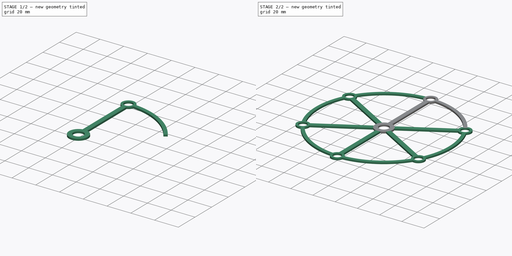
[diagram: build sequence overview — one tinted view per stage of 2, left to right]
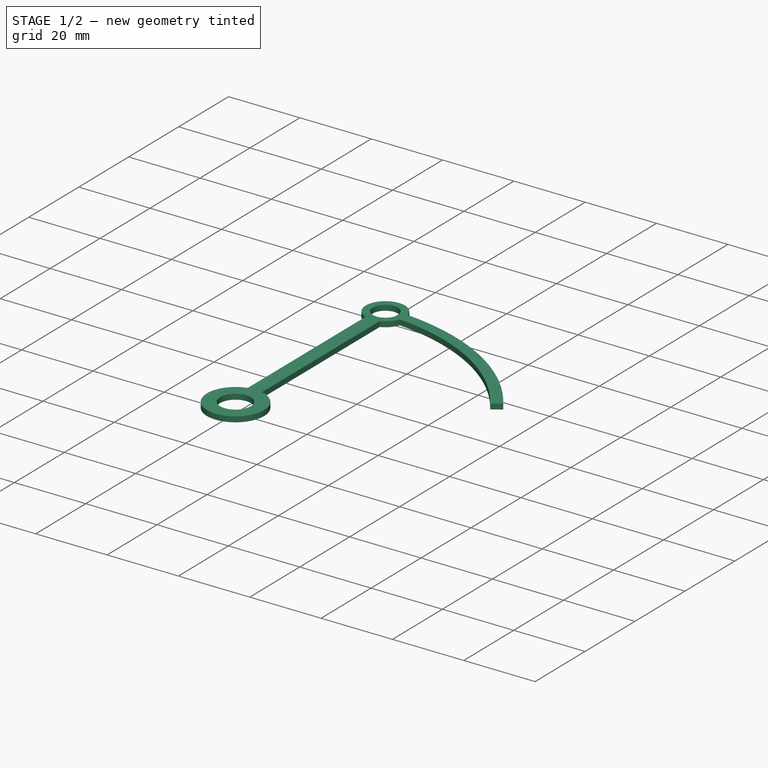
[diagram: stage 1 of 2 — iso view after this stage's code; geometry added in this stage tinted green]
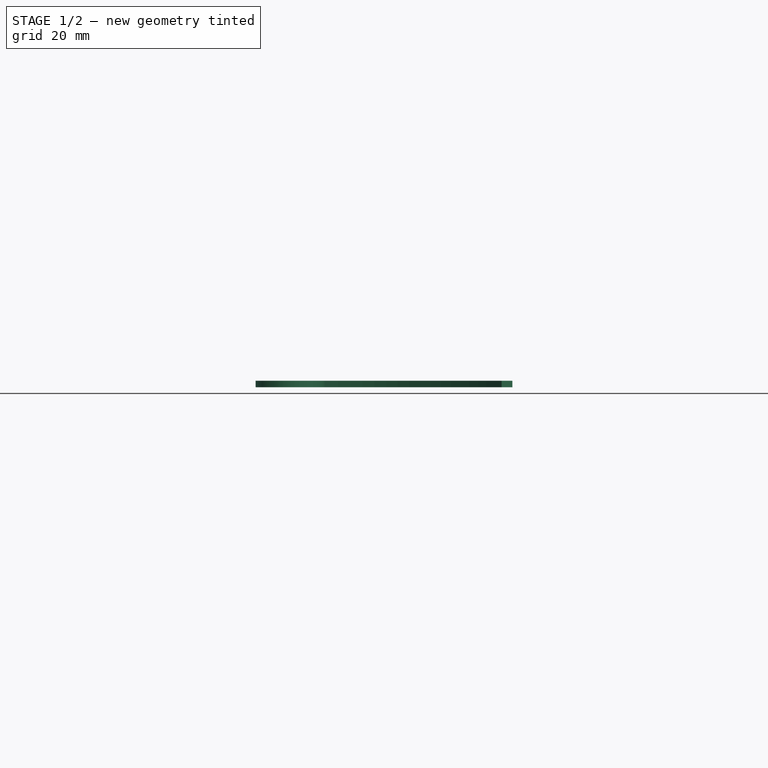
[diagram: stage 1 of 2 — front view after this stage's code; geometry added in this stage tinted green]
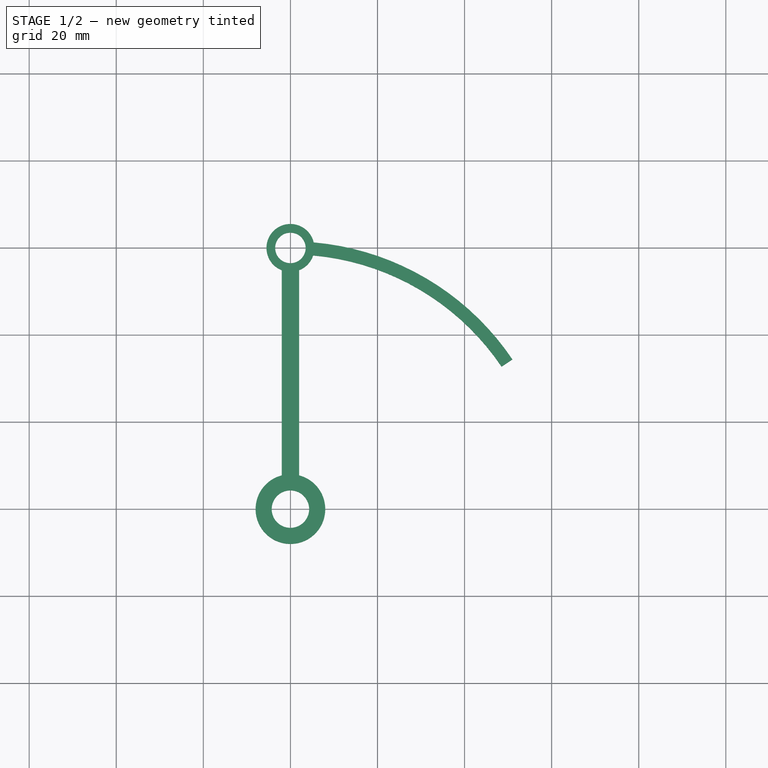
[diagram: stage 1 of 2 — top view after this stage's code; geometry added in this stage tinted green]
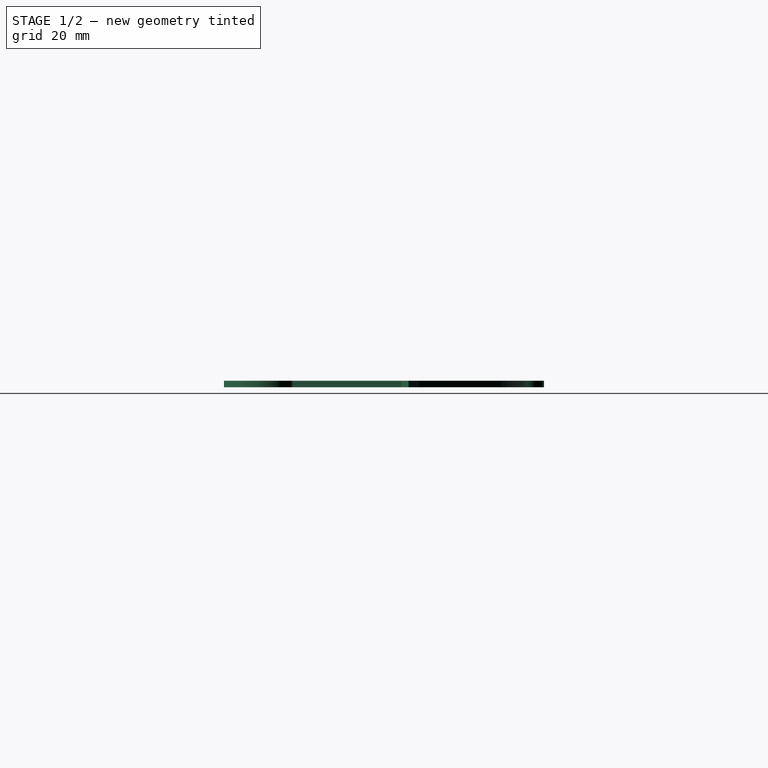
[diagram: stage 1 of 2 — right view after this stage's code; geometry added in this stage tinted green]
FCSTD DOCUMENT  (FreeCAD 0.19R24212 (Git))
Label: bearing_spacer
License: All rights reserved
LicenseURL: http://en.wikipedia.org/wiki/All_rights_reserved
objects: Sketcher::SketchObject×1, PartDesign::Pad×1, PartDesign::PolarPattern×1, PartDesign::Body×1
note: 5 computed .brp shape members not serialized (recipe doc carries the construction recipe); baked Part::Feature solids carry a one-line shape summary decoded from their .brp

FEATURE [Sketcher::SketchObject] Sketch
  FullyConstrained = false
  MapMode = 5
  Support = -> [XY_Plane]
  sketch-geometry (20):
    g0: Circle CenterX=0 CenterY=0 CenterZ=0 NormalX=0 NormalY=0 NormalZ=1 AngleXU=0 Radius=4.3
    g1: ArcOfCircle CenterX=0 CenterY=0 CenterZ=0 NormalX=0 NormalY=0 NormalZ=1 AngleXU=0 Radius=8 StartAngle=0.593412 EndAngle=1.31812
    g2: LineSegment StartX=0 StartY=0 StartZ=0 EndX=6.6323 EndY=4.47354 EndZ=0
    g3: LineSegment StartX=2 StartY=7.74597 StartZ=0 EndX=2 EndY=54.8765 EndZ=0
    g4: ArcOfCircle CenterX=0 CenterY=0 CenterZ=0 NormalX=0 NormalY=0 NormalZ=1 AngleXU=0 Radius=61.5 StartAngle=0.593412 EndAngle=1.48366
    g5: LineSegment StartX=6.6323 StartY=4.47354 StartZ=0 EndX=50.9858 EndY=34.3904 EndZ=0
    g6: Circle CenterX=0 CenterY=60 CenterZ=0 NormalX=0 NormalY=0 NormalZ=1 AngleXU=0 Radius=3.5
    g7: ArcOfCircle CenterX=0 CenterY=60 CenterZ=0 NormalX=0 NormalY=0 NormalZ=1 AngleXU=0 Radius=5.5 StartAngle=0.232396 EndAngle=4.34022
    g8: ArcOfCircle CenterX=0 CenterY=60 CenterZ=0 NormalX=0 NormalY=0 NormalZ=1 AngleXU=0 Radius=5.5 StartAngle=5.08456 EndAngle=5.96258
    g9: ArcOfCircle CenterX=0 CenterY=0 CenterZ=0 NormalX=0 NormalY=0 NormalZ=1 AngleXU=0 Radius=58.5 StartAngle=0.593412 EndAngle=1.48145
    g10: ArcOfCircle CenterX=0 CenterY=60 CenterZ=0 NormalX=0 NormalY=0 NormalZ=1 AngleXU=0 Radius=5.5 StartAngle=5.96258 EndAngle=6.51558
    g11: ArcOfCircle CenterX=0 CenterY=0 CenterZ=0 NormalX=0 NormalY=0 NormalZ=1 AngleXU=0 Radius=8 StartAngle=1.82348 EndAngle=6.8766
    g12: LineSegment StartX=-2 StartY=7.74597 StartZ=0 EndX=-2 EndY=54.8765 EndZ=0
    g13: LineSegment StartX=-2 StartY=54.8765 StartZ=0 EndX=2 EndY=54.8765 EndZ=0
    g14: LineSegment StartX=-2 StartY=7.74597 StartZ=0 EndX=2 EndY=7.74597 EndZ=0
    g15: Circle CenterX=0 CenterY=0 CenterZ=0 NormalX=0 NormalY=0 NormalZ=1 AngleXU=0 Radius=60
    g16: LineSegment StartX=5.35215 StartY=61.2667 StartZ=0 EndX=5.28594 EndY=59.7667 EndZ=0
    g17: LineSegment StartX=5.21974 StartY=58.2667 StartZ=0 EndX=5.28594 EndY=59.7667 EndZ=0
    g18: LineSegment StartX=48.4987 StartY=32.7128 StartZ=0 EndX=50.9858 EndY=34.3904 EndZ=0
    g19: LineSegment StartX=48.4987 StartY=32.7128 StartZ=0 EndX=50.9858 EndY=34.3904 EndZ=0
  constraints (50):
    c: Coincident(g0,g-1)
    c: Coincident(g1,g0)
    c: Coincident(g2,g0)
    c: Coincident(g2,g1)
    c: Angle(g2,g-2) = 0.977384
    c: Coincident(g1,g3)
    c: Vertical(g3)
    c: Coincident(g4,g0)
    c: Coincident(g5,g1)
    c: Coincident(g5,g4)
    c: Parallel(g2,g5)
    c: PointOnObject(g6,g-2)
    c: Radius(g6) = 3.5
    c: Coincident(g7,g6)
    c: Coincident(g7,g4)
    c: Coincident(g8,g6)
    c: Coincident(g8,g3)
    c: Coincident(g9,g0)
    c: Coincident(g9,g8)
    c: PointOnObject(g9,g5)
    c: Coincident(g10,g6)
    c: Coincident(g10,g4)
    c: Coincident(g10,g8)
    c: Coincident(g11,g0)
    c: Coincident(g11,g1)
    c: Coincident(g12,g11)
    c: Coincident(g12,g7)
    c: Vertical(g12)
    c: Coincident(g13,g7)
    c: Coincident(g13,g3)
    c: Coincident(g14,g11)
    c: Coincident(g14,g1)
    c: Horizontal(g14)
    c: Distance(g13) = 4
    c: Distance(g6,g0) = 60
    c: Coincident(g15,g0)
    c: PointOnObject(g6,g15)
    c: Coincident(g16,g4)
    c: PointOnObject(g16,g15)
    c: Coincident(g17,g8)
    c: Coincident(g17,g16)
    c: Parallel(g17,g16)
    c: Equal(g17,g16)
    c: Radius(g7) = 5.5
    c: Radius(g0) = 4.3
    c: Radius(g11) = 8
    c: Distance(g9,g4) = 3
    c: Coincident(g18,g9)
    c: Coincident(g19,g4)
    c: Coincident(g19,g9)
FEATURE [PartDesign::Pad] Pad
  Direction = (1,1,1)
  Length = 1.5
  Length2 = 100
  Profile = -> Sketch
  Type = 0
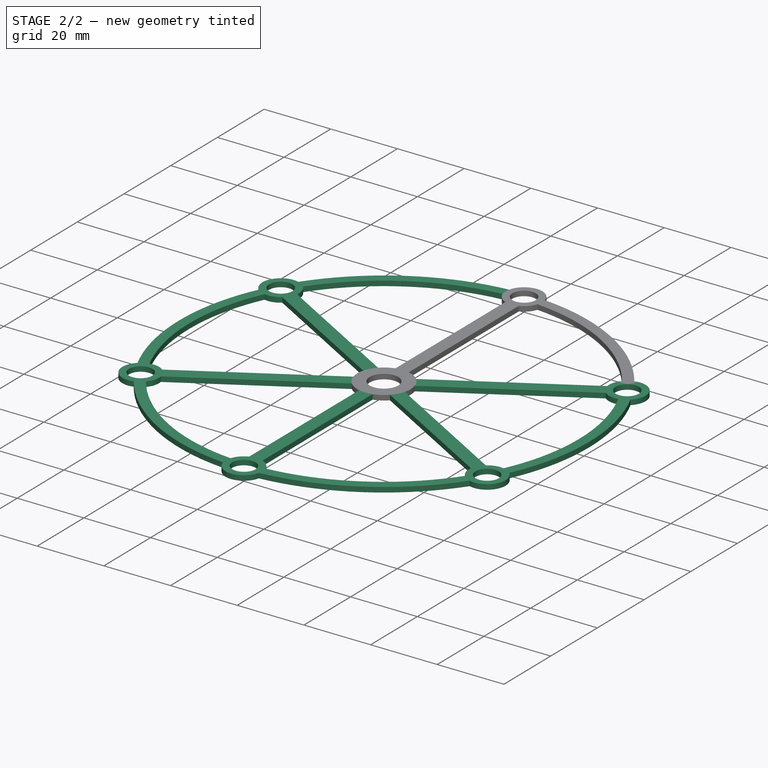
[diagram: stage 2 of 2 — iso view after this stage's code; geometry added in this stage tinted green]
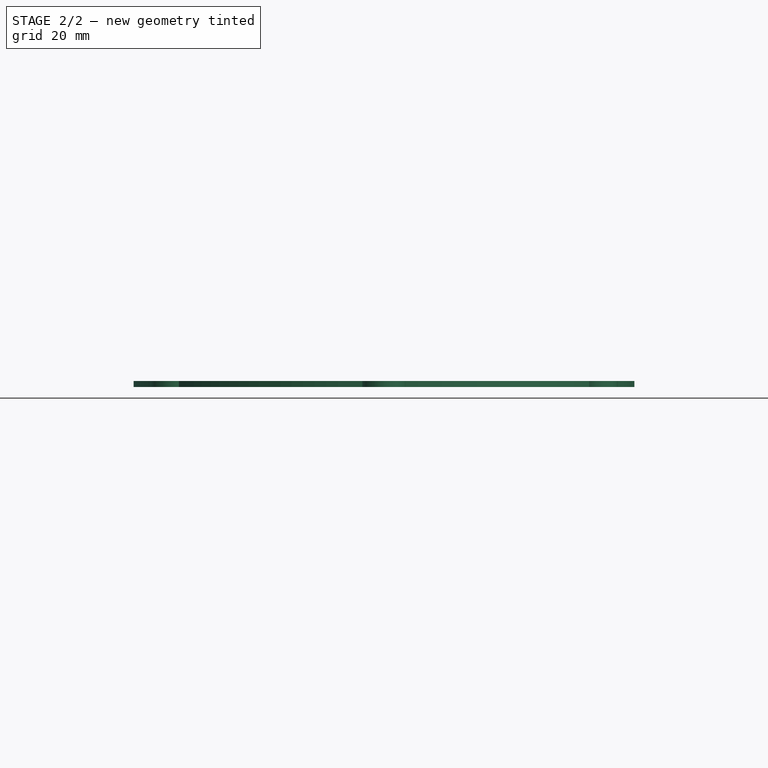
[diagram: stage 2 of 2 — front view after this stage's code; geometry added in this stage tinted green]
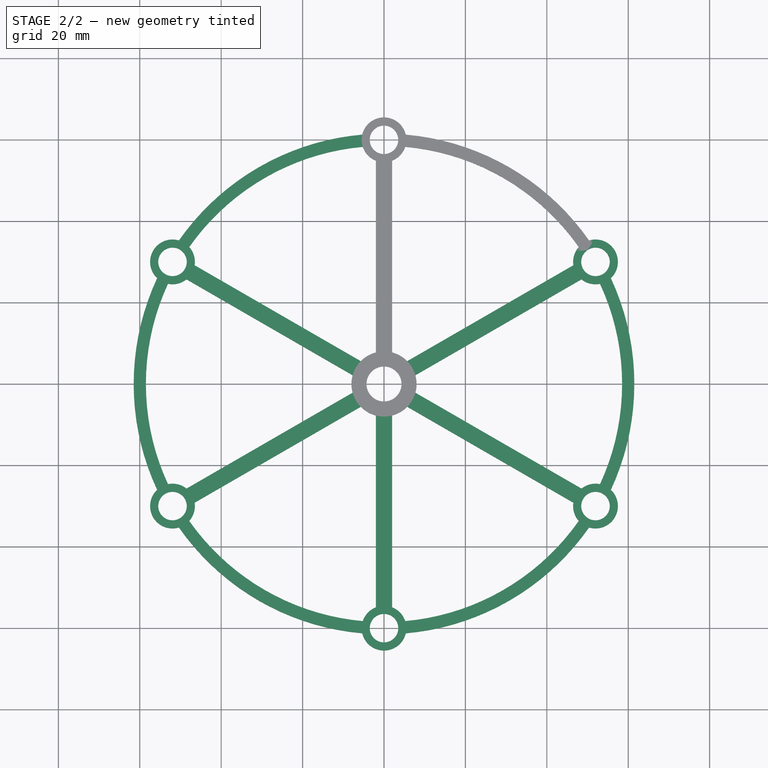
[diagram: stage 2 of 2 — top view after this stage's code; geometry added in this stage tinted green]
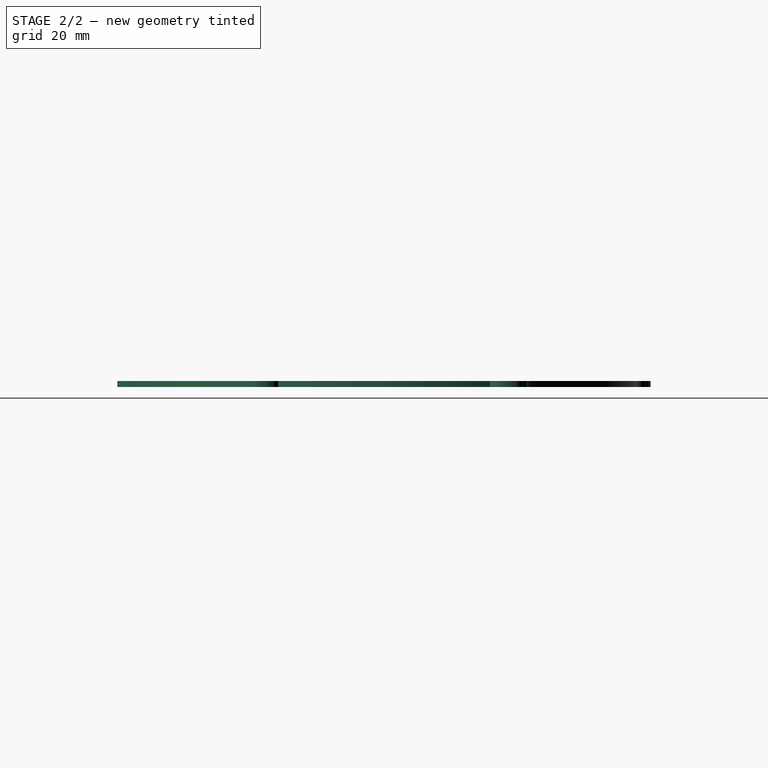
[diagram: stage 2 of 2 — right view after this stage's code; geometry added in this stage tinted green]
FEATURE [PartDesign::PolarPattern] PolarPattern
  Angle = 360
  Axis = -> Sketch [N_Axis]
  BaseFeature = -> Pad
  Occurrences = 6
  Originals = -> [Pad]
FEATURE [PartDesign::Body] Body
  Group = -> [Sketch,Pad,PolarPattern]
  Origin = -> Origin
  Tip = -> PolarPattern
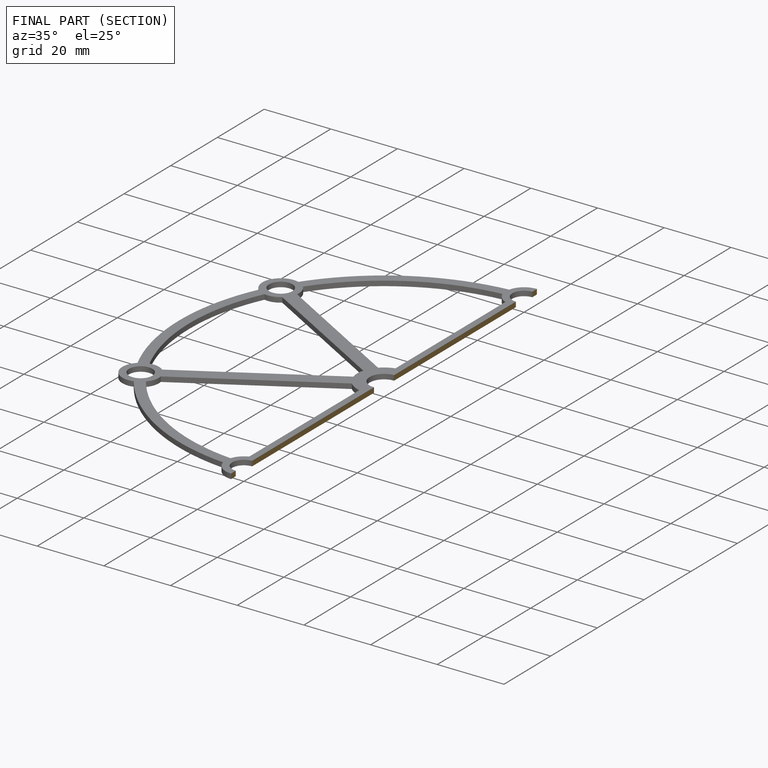
[diagram: finished part — half-section view (interior)]
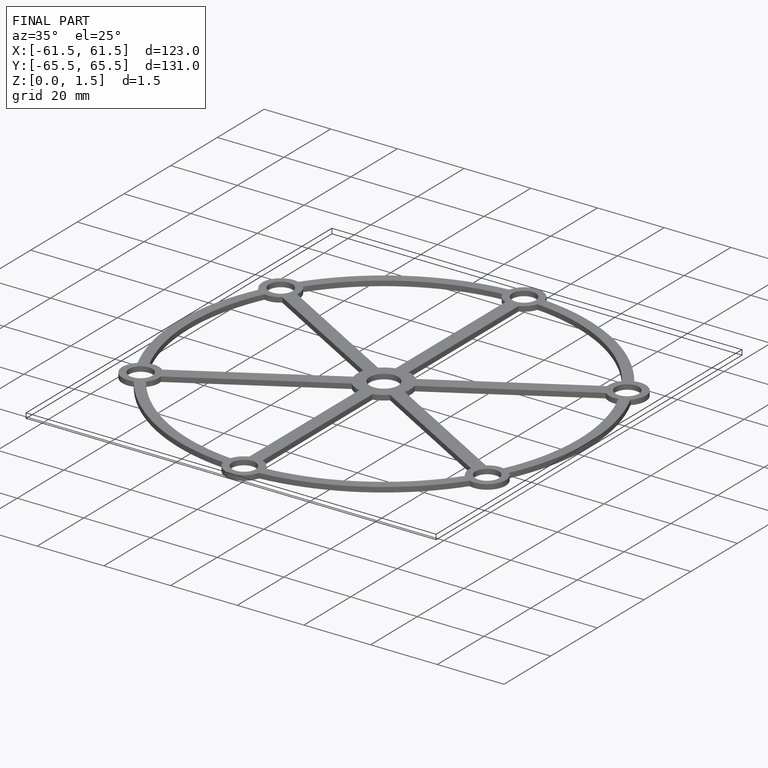
[diagram: finished part — iso view with bounding-box wireframe]
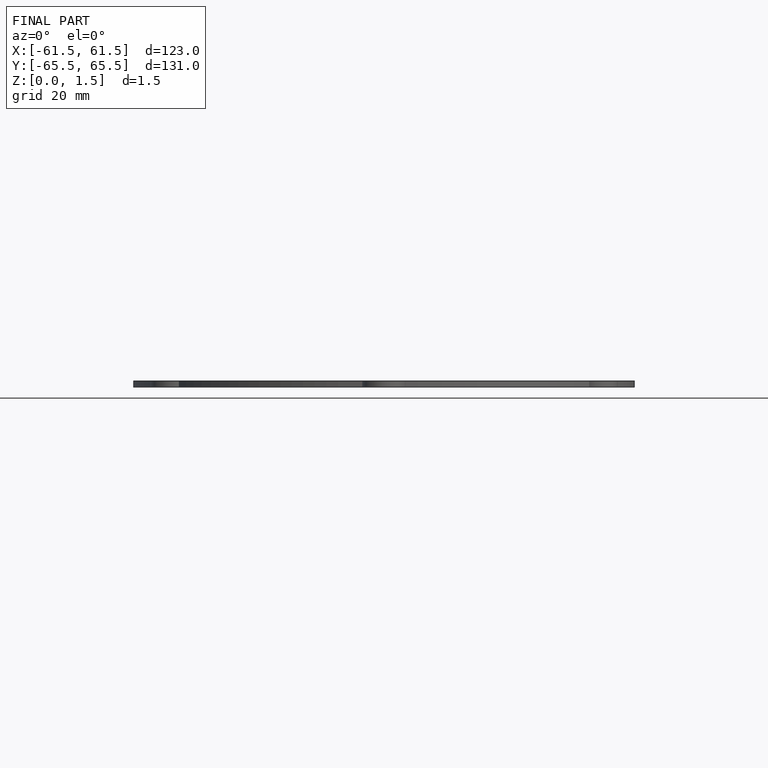
[diagram: finished part — front view with bounding-box wireframe]
